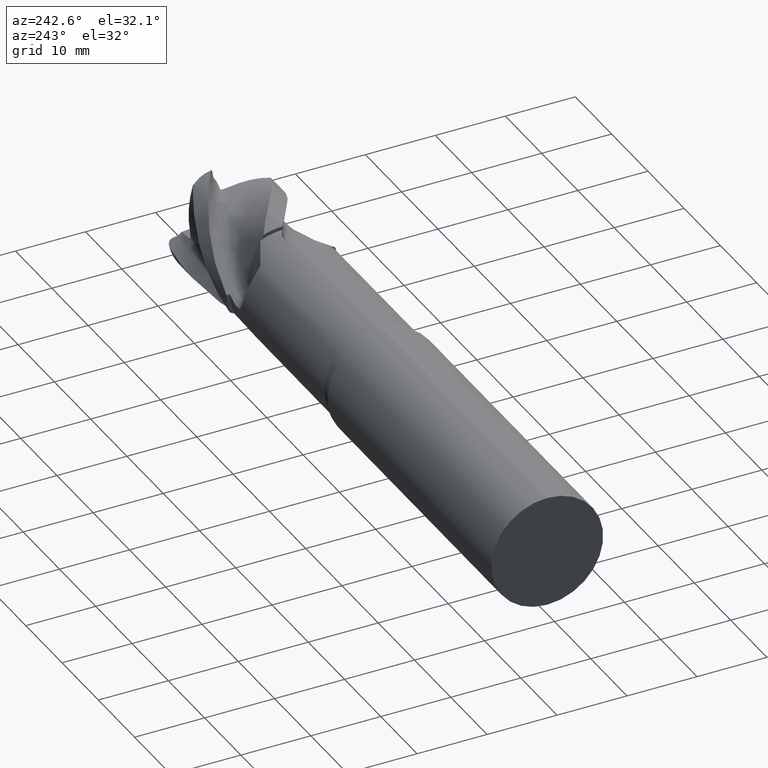
[diagram: clean part render]
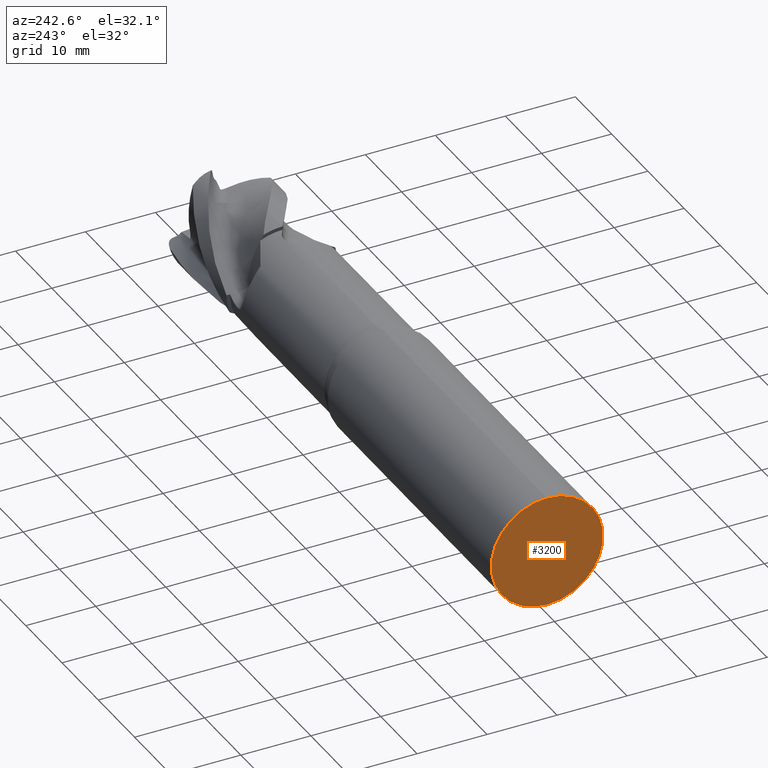
[diagram: same view with one face highlighted and labeled with its STEP entity id]
A machine part, auxiliary view. The second image highlights one B-rep face of the part: STEP entity #3200.
In plain terms, the highlighted planar face has unit normal (1, 0, 0).
Its self-contained STEP definition (entity closure, byte-faithful):
#124 = FACE_OUTER_BOUND ( 'NONE', #5222, .T. ) ;
#403 = CARTESIAN_POINT ( 'NONE',  ( -48.00000000000000000, 0.0000000000000000000, 0.0000000000000000000 ) ) ;
#471 = DIRECTION ( 'NONE',  ( -1.000000000000000000, -0.0000000000000000000, -0.0000000000000000000 ) ) ;
#472 = DIRECTION ( 'NONE',  ( 0.0000000000000000000, 0.0000000000000000000, 1.000000000000000000 ) ) ;
#529 = ORIENTED_EDGE ( 'NONE', *, *, #1770, .T. ) ;
#557 = ORIENTED_EDGE ( 'NONE', *, *, #1906, .T. ) ;
#693 = CIRCLE ( 'NONE', #1785, 8.000000000000001800 ) ;
#719 = CIRCLE ( 'NONE', #1762, 8.000000000000001800 ) ;
#785 = VERTEX_POINT ( 'NONE', #888 ) ;
#819 = CARTESIAN_POINT ( 'NONE',  ( -48.00000000000000000, 0.0000000000000000000, 8.000000000000001800 ) ) ;
#888 = CARTESIAN_POINT ( 'NONE',  ( -48.00000000000000000, 9.797174393178829600E-016, -8.000000000000001800 ) ) ;
#931 = VERTEX_POINT ( 'NONE', #819 ) ;
#1191 = CARTESIAN_POINT ( 'NONE',  ( -48.00000000000000000, 0.0000000000000000000, 0.0000000000000000000 ) ) ;
#1195 = DIRECTION ( 'NONE',  ( -1.000000000000000000, -0.0000000000000000000, -0.0000000000000000000 ) ) ;
#1196 = DIRECTION ( 'NONE',  ( 0.0000000000000000000, 0.0000000000000000000, 1.000000000000000000 ) ) ;
#1762 = AXIS2_PLACEMENT_3D ( 'NONE', #403, #471, #472 ) ;
#1770 = EDGE_CURVE ( 'NONE', #931, #785, #719, .T. ) ;
#1776 = AXIS2_PLACEMENT_3D ( 'NONE', #5135, #5138, #5139 ) ;
#1785 = AXIS2_PLACEMENT_3D ( 'NONE', #1191, #1195, #1196 ) ;
#1906 = EDGE_CURVE ( 'NONE', #785, #931, #693, .T. ) ;
#3200 = ADVANCED_FACE ( 'NONE', ( #124 ), #5136, .F. ) ;
#5135 = CARTESIAN_POINT ( 'NONE',  ( -48.00000000000000000, 8.000000000000001800, 0.0000000000000000000 ) ) ;
#5136 = PLANE ( 'NONE',  #1776 ) ;
#5138 = DIRECTION ( 'NONE',  ( 1.000000000000000000, 0.0000000000000000000, 0.0000000000000000000 ) ) ;
#5139 = DIRECTION ( 'NONE',  ( 0.0000000000000000000, 0.0000000000000000000, -1.000000000000000000 ) ) ;
#5222 = EDGE_LOOP ( 'NONE', ( #529, #557 ) ) ;